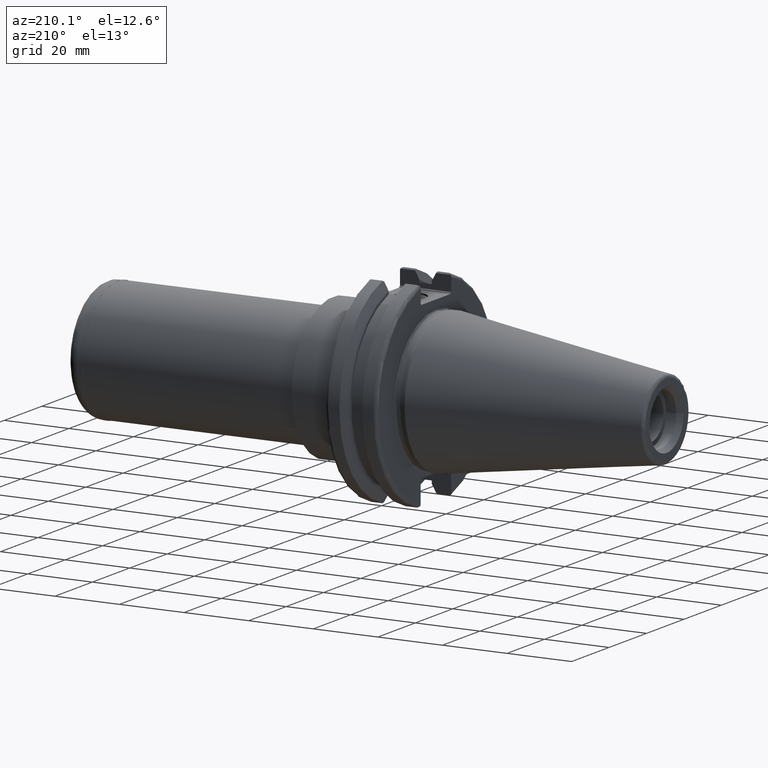
[diagram: clean part render]
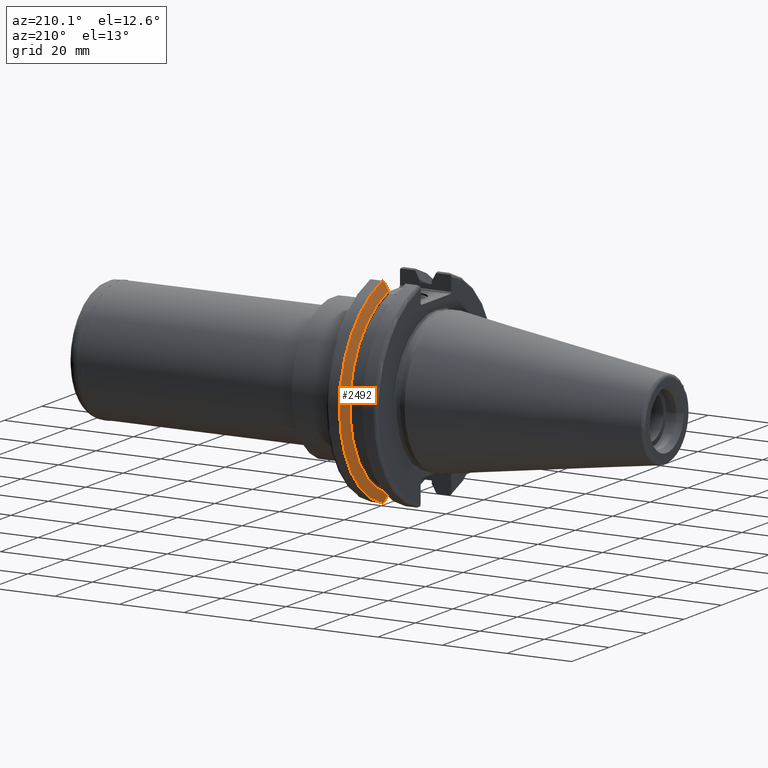
[diagram: same view with one face highlighted and labeled with its STEP entity id]
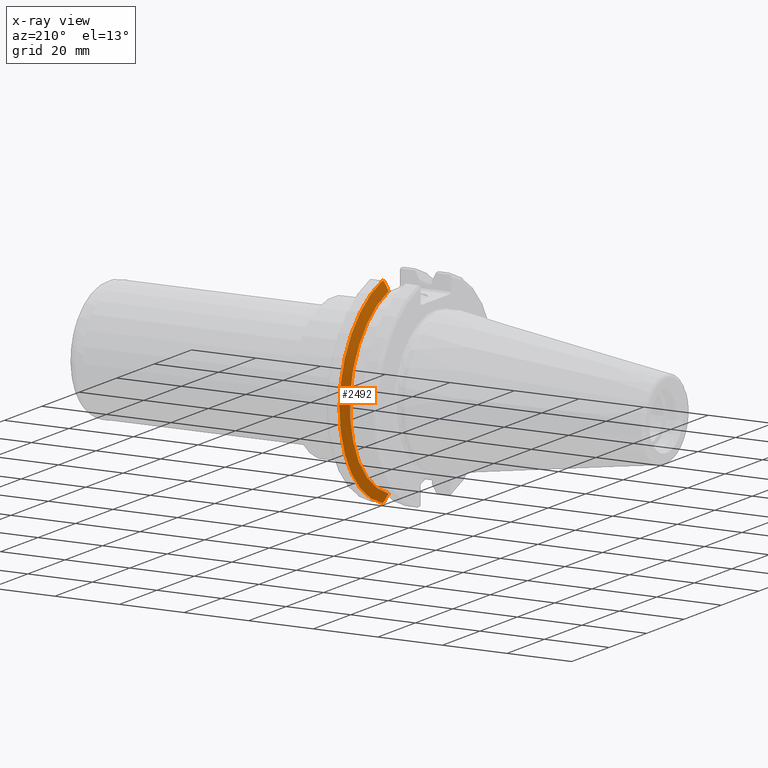
[diagram: x-ray of the same camera — body ghosted, the highlighted face saturated]
A machine part, auxiliary view. The second image highlights one B-rep face of the part: STEP entity #2492.
The next image is the same camera in x-ray: the body ghosted, the highlighted face saturated — about 0% of this face is hidden behind the body in this view.
In plain terms, the highlighted conical surface has half-angle 60 deg.
Its self-contained STEP definition (entity closure, byte-faithful):
#553=CONICAL_SURFACE('',#2854,30.3546886482472,1.0471975511966);
#620=CIRCLE('',#2829,31.75);
#630=CIRCLE('',#2852,28.9593772964944);
#692=(
BOUNDED_CURVE()
B_SPLINE_CURVE(2,(#3900,#3901,#3902),.UNSPECIFIED.,.F.,.F.)
B_SPLINE_CURVE_WITH_KNOTS((3,3),(0.329353533631224,0.393258405001022),
 .UNSPECIFIED.)
CURVE()
GEOMETRIC_REPRESENTATION_ITEM()
RATIONAL_B_SPLINE_CURVE((1.00047644010598,1.00028444218298,1.))
REPRESENTATION_ITEM('')
);
#694=(
BOUNDED_CURVE()
B_SPLINE_CURVE(2,(#3927,#3928,#3929),.UNSPECIFIED.,.F.,.F.)
B_SPLINE_CURVE_WITH_KNOTS((3,3),(0.0550586467388169,0.33160778953585),
 .UNSPECIFIED.)
CURVE()
GEOMETRIC_REPRESENTATION_ITEM()
RATIONAL_B_SPLINE_CURVE((1.00031614444917,1.00095203903631,1.))
REPRESENTATION_ITEM('')
);
#702=(
BOUNDED_CURVE()
B_SPLINE_CURVE(2,(#4132,#4133,#4134),.UNSPECIFIED.,.F.,.F.)
B_SPLINE_CURVE_WITH_KNOTS((3,3),(0.,0.276549142797025),.UNSPECIFIED.)
CURVE()
GEOMETRIC_REPRESENTATION_ITEM()
RATIONAL_B_SPLINE_CURVE((1.,1.0009520390361,1.0003161444491))
REPRESENTATION_ITEM('')
);
#706=(
BOUNDED_CURVE()
B_SPLINE_CURVE(2,(#4171,#4172,#4173),.UNSPECIFIED.,.F.,.F.)
B_SPLINE_CURVE_WITH_KNOTS((3,3),(0.,0.0639048713675822),.UNSPECIFIED.)
CURVE()
GEOMETRIC_REPRESENTATION_ITEM()
RATIONAL_B_SPLINE_CURVE((1.,1.00028444218292,1.00047644010589))
REPRESENTATION_ITEM('')
);
#773=FACE_OUTER_BOUND('',#902,.T.);
#902=EDGE_LOOP('',(#2072,#2073,#2074,#2075,#2076,#2077));
#1319=VERTEX_POINT('',#3897);
#1320=VERTEX_POINT('',#3899);
#1327=VERTEX_POINT('',#3925);
#1368=VERTEX_POINT('',#4129);
#1369=VERTEX_POINT('',#4131);
#1377=VERTEX_POINT('',#4161);
#1531=EDGE_CURVE('',#1319,#1320,#692,.T.);
#1541=EDGE_CURVE('',#1319,#1327,#694,.T.);
#1602=EDGE_CURVE('',#1369,#1368,#702,.T.);
#1614=EDGE_CURVE('',#1320,#1377,#620,.T.);
#1618=EDGE_CURVE('',#1377,#1368,#706,.T.);
#1630=EDGE_CURVE('',#1327,#1369,#630,.T.);
#2072=ORIENTED_EDGE('',*,*,#1531,.F.);
#2073=ORIENTED_EDGE('',*,*,#1541,.T.);
#2074=ORIENTED_EDGE('',*,*,#1630,.T.);
#2075=ORIENTED_EDGE('',*,*,#1602,.T.);
#2076=ORIENTED_EDGE('',*,*,#1618,.F.);
#2077=ORIENTED_EDGE('',*,*,#1614,.F.);
#2492=ADVANCED_FACE('',(#773),#553,.T.);
#2829=AXIS2_PLACEMENT_3D('',#4162,#3268,#3269);
#2852=AXIS2_PLACEMENT_3D('',#4200,#3317,#3318);
#2854=AXIS2_PLACEMENT_3D('',#4202,#3321,#3322);
#3268=DIRECTION('center_axis',(1.,0.,0.));
#3269=DIRECTION('ref_axis',(0.,0.,-1.));
#3317=DIRECTION('center_axis',(1.,0.,0.));
#3318=DIRECTION('ref_axis',(0.,0.,-1.));
#3321=DIRECTION('center_axis',(1.,0.,0.));
#3322=DIRECTION('ref_axis',(0.,1.,0.));
#3897=CARTESIAN_POINT('',(14.3744146964874,8.19,-30.1755016258903));
#3899=CARTESIAN_POINT('',(14.6531667690756,8.67204822802685,-30.5427254764662));
#3900=CARTESIAN_POINT('Ctrl Pts',(14.3744146964874,8.19,-30.1755016258903));
#3901=CARTESIAN_POINT('Ctrl Pts',(14.5121085187884,8.42917748263461,-30.3577067892692));
#3902=CARTESIAN_POINT('Ctrl Pts',(14.6531667690756,8.67204822802686,-30.5427254764662));
#3925=CARTESIAN_POINT('',(13.042,8.19,-27.7771386827498));
#3927=CARTESIAN_POINT('Ctrl Pts',(14.3744146964874,8.19,-30.1755016258903));
#3928=CARTESIAN_POINT('Ctrl Pts',(13.6806364384668,8.19,-28.9303689539538));
#3929=CARTESIAN_POINT('Ctrl Pts',(13.042,8.19,-27.7771386827498));
#4129=CARTESIAN_POINT('',(14.3744146964874,8.19,30.1755016258903));
#4131=CARTESIAN_POINT('',(13.042,8.19,27.7771386827498));
#4132=CARTESIAN_POINT('Ctrl Pts',(13.042,8.19,27.7771386827498));
#4133=CARTESIAN_POINT('Ctrl Pts',(13.6806364384667,8.19,28.9303689539537));
#4134=CARTESIAN_POINT('Ctrl Pts',(14.3744146964874,8.19,30.1755016258903));
#4161=CARTESIAN_POINT('',(14.6531667690756,8.67204822802685,30.5427254764662));
#4162=CARTESIAN_POINT('Origin',(14.6531667690756,0.,0.));
#4171=CARTESIAN_POINT('Ctrl Pts',(14.6531667690756,8.67204822802686,30.5427254764662));
#4172=CARTESIAN_POINT('Ctrl Pts',(14.5121085187837,8.42917748262643,30.357706789263));
#4173=CARTESIAN_POINT('Ctrl Pts',(14.3744146964874,8.19,30.1755016258903));
#4200=CARTESIAN_POINT('Origin',(13.042,0.,0.));
#4202=CARTESIAN_POINT('Origin',(13.8475833845378,0.,0.));